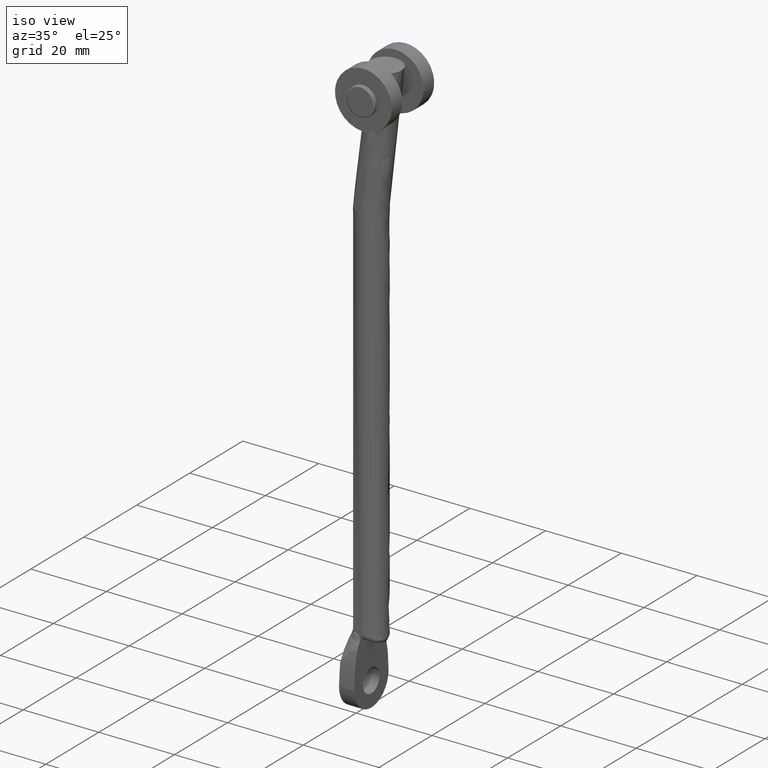
[diagram: clean part render]
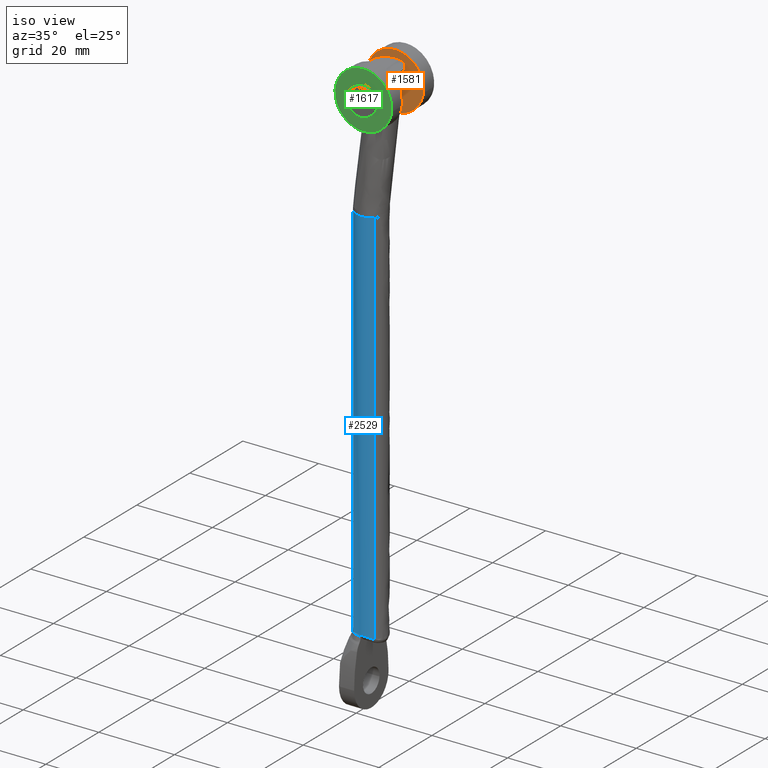
[diagram: same view with three faces highlighted in distinct colors, each labeled with its STEP entity id]
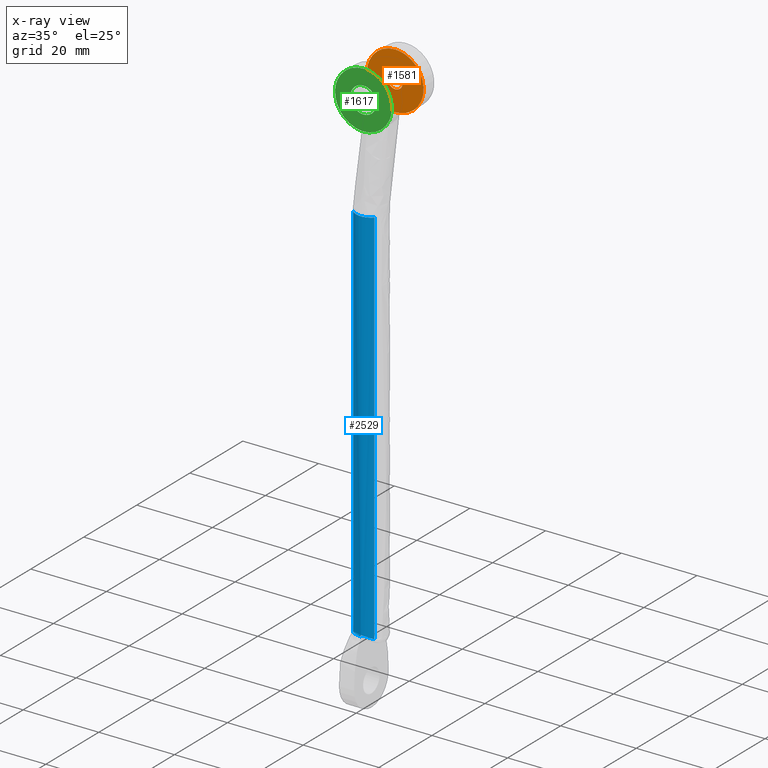
[diagram: x-ray of the same camera — body ghosted, the three highlighted faces saturated]
A machine part, iso view with three faces highlighted in distinct colors.
The next image is the same camera in x-ray (body ghosted, the three faces saturated) — at least one of them is partly hidden behind the body in this view.
Their STEP definitions:

[orange] entity #1581 — the highlighted face is a freeform B-spline surface patch.
#472=CARTESIAN_POINT('',(0.014254323228285,4.000000189989775,143.026304512900710));
#473=VERTEX_POINT('',#472);
#479=CARTESIAN_POINT('',(7.500413774066689,4.000000189989775,150.068580125921500));
#480=VERTEX_POINT('',#479);
#481=CARTESIAN_POINT('',(7.500413774066689,4.000000189989775,150.068580125921500));
#482=CARTESIAN_POINT('',(0.444978351955795,4.000000189989775,150.068580125921530));
#483=CARTESIAN_POINT('',(0.014254323228285,4.000000189989775,143.026304512900650));
#491=(BOUNDED_CURVE()B_SPLINE_CURVE(2,(#481,#482,#483),.UNSPECIFIED.,.F.,.U.)B_SPLINE_CURVE_WITH_KNOTS((3,3),(0.500000000000000,0.739332962231880),.UNSPECIFIED.)CURVE()GEOMETRIC_REPRESENTATION_ITEM()RATIONAL_B_SPLINE_CURVE((1.0,0.719603993294985,0.976072041651580))REPRESENTATION_ITEM(''));
#492=EDGE_CURVE('',#480,#473,#491,.T.);
#494=CARTESIAN_POINT('',(14.948132922138850,4.000000189989775,141.683157069371300));
#495=VERTEX_POINT('',#494);
#496=CARTESIAN_POINT('',(14.948132922138848,4.000000189989775,141.683157069371280));
#497=CARTESIAN_POINT('',(15.000562514184788,4.000000189989775,142.124241679330230));
#498=CARTESIAN_POINT('',(15.000562514184780,4.000000189989775,142.568431385803390));
#499=CARTESIAN_POINT('',(15.000562514184788,4.000000189989776,150.068580125921410));
#500=CARTESIAN_POINT('',(7.500413774066689,4.000000189989775,150.068580125921500));
#508=(BOUNDED_CURVE()B_SPLINE_CURVE(2,(#496,#497,#498,#499,#500),.UNSPECIFIED.,.F.,.U.)B_SPLINE_CURVE_WITH_KNOTS((3,2,3),(0.229562473511994,0.250000000000000,0.500000000000000),.UNSPECIFIED.)CURVE()GEOMETRIC_REPRESENTATION_ITEM()RATIONAL_B_SPLINE_CURVE((0.956026754180732,0.976055948329371,1.0,0.707106781186548,1.0))REPRESENTATION_ITEM(''));
#509=EDGE_CURVE('',#495,#480,#508,.T.);
#553=CARTESIAN_POINT('',(7.500413774066689,4.000000189989775,135.068282645685290));
#554=VERTEX_POINT('',#553);
#555=CARTESIAN_POINT('',(7.500413774066689,4.000000189989775,135.068282645685290));
#556=CARTESIAN_POINT('',(14.161854825740949,4.000000189989775,135.068282645685290));
#557=CARTESIAN_POINT('',(14.948132922138845,4.000000189989776,141.683157069371250));
#565=(BOUNDED_CURVE()B_SPLINE_CURVE(2,(#555,#556,#557),.UNSPECIFIED.,.F.,.U.)B_SPLINE_CURVE_WITH_KNOTS((3,3),(0.0,0.229562473511994),.UNSPECIFIED.)CURVE()GEOMETRIC_REPRESENTATION_ITEM()RATIONAL_B_SPLINE_CURVE((1.0,0.731050832857176,0.956026754180732))REPRESENTATION_ITEM(''));
#566=EDGE_CURVE('',#554,#495,#565,.T.);
#568=CARTESIAN_POINT('',(0.014254323228285,4.000000189989775,143.026304512900680));
#569=CARTESIAN_POINT('',(0.000265033948598,4.000000189989776,142.797581655183850));
#570=CARTESIAN_POINT('',(0.000265033948598,4.000000189989775,142.568431385803390));
#571=CARTESIAN_POINT('',(0.000265033948598,4.000000189989776,135.068282645685290));
#572=CARTESIAN_POINT('',(7.500413774066689,4.000000189989775,135.068282645685290));
#580=(BOUNDED_CURVE()B_SPLINE_CURVE(2,(#568,#569,#570,#571,#572),.UNSPECIFIED.,.F.,.U.)B_SPLINE_CURVE_WITH_KNOTS((3,2,3),(0.739332962231881,0.750000000000000,1.0),.UNSPECIFIED.)CURVE()GEOMETRIC_REPRESENTATION_ITEM()RATIONAL_B_SPLINE_CURVE((0.976072041651582,0.987502787891563,1.0,0.707106781186548,1.0))REPRESENTATION_ITEM(''));
#581=EDGE_CURVE('',#473,#554,#580,.T.);
#624=CARTESIAN_POINT('',(9.486580267670908,4.000000189989775,142.332345390330690));
#625=VERTEX_POINT('',#624);
#626=CARTESIAN_POINT('',(7.500413774066689,4.000000189989775,144.568579864685490));
#627=VERTEX_POINT('',#626);
#628=CARTESIAN_POINT('',(9.486580267670908,4.000000189989776,142.332345390330630));
#629=CARTESIAN_POINT('',(9.500562252948800,4.000000189989775,142.449974352394460));
#630=CARTESIAN_POINT('',(9.500562252948800,4.000000189989775,142.568431385803390));
#631=CARTESIAN_POINT('',(9.500562252948800,4.000000189989775,144.568579864685520));
#632=CARTESIAN_POINT('',(7.500413774066689,4.000000189989775,144.568579864685490));
#640=(BOUNDED_CURVE()B_SPLINE_CURVE(2,(#628,#629,#630,#631,#632),.UNSPECIFIED.,.F.,.U.)B_SPLINE_CURVE_WITH_KNOTS((3,2,3),(0.229562473418986,0.250000000000000,0.500000000000000),.UNSPECIFIED.)CURVE()GEOMETRIC_REPRESENTATION_ITEM()RATIONAL_B_SPLINE_CURVE((0.956026753998431,0.976055948220405,1.0,0.707106781186547,1.0))REPRESENTATION_ITEM(''));
#641=EDGE_CURVE('',#625,#627,#640,.T.);
#643=CARTESIAN_POINT('',(5.503996029878602,4.000000189989775,142.690538421901100));
#644=VERTEX_POINT('',#643);
#645=CARTESIAN_POINT('',(7.500413774066689,4.000000189989775,144.568579864685490));
#646=CARTESIAN_POINT('',(5.618863650917310,4.000000189989775,144.568579864685570));
#647=CARTESIAN_POINT('',(5.503996029878602,4.000000189989776,142.690538421901150));
#655=(BOUNDED_CURVE()B_SPLINE_CURVE(2,(#645,#646,#647),.UNSPECIFIED.,.F.,.U.)B_SPLINE_CURVE_WITH_KNOTS((3,3),(0.500000000000000,0.739332807948800),.UNSPECIFIED.)CURVE()GEOMETRIC_REPRESENTATION_ITEM()RATIONAL_B_SPLINE_CURVE((1.0,0.719604174048856,0.976071710993794))REPRESENTATION_ITEM(''));
#656=EDGE_CURVE('',#627,#644,#655,.T.);
#723=CARTESIAN_POINT('',(7.500413774066689,4.000000189989775,140.568282906921300));
#724=VERTEX_POINT('',#723);
#725=CARTESIAN_POINT('',(7.500413774066689,4.000000189989775,140.568282906921300));
#726=CARTESIAN_POINT('',(9.276894700106974,4.000000189989774,140.568282906921240));
#727=CARTESIAN_POINT('',(9.486580267670908,4.000000189989776,142.332345390330630));
#735=(BOUNDED_CURVE()B_SPLINE_CURVE(2,(#725,#726,#727),.UNSPECIFIED.,.F.,.U.)B_SPLINE_CURVE_WITH_KNOTS((3,3),(0.0,0.229562473418986),.UNSPECIFIED.)CURVE()GEOMETRIC_REPRESENTATION_ITEM()RATIONAL_B_SPLINE_CURVE((1.0,0.731050832966143,0.956026753998431))REPRESENTATION_ITEM(''));
#736=EDGE_CURVE('',#724,#625,#735,.T.);
#770=CARTESIAN_POINT('',(5.503996029878602,4.000000189989776,142.690538421901150));
#771=CARTESIAN_POINT('',(5.500265295184580,4.000000189989775,142.629542343952610));
#772=CARTESIAN_POINT('',(5.500265295184579,4.000000189989775,142.568431385803390));
#773=CARTESIAN_POINT('',(5.500265295184580,4.000000189989775,140.568282906921270));
#774=CARTESIAN_POINT('',(7.500413774066689,4.000000189989775,140.568282906921300));
#782=(BOUNDED_CURVE()B_SPLINE_CURVE(2,(#770,#771,#772,#773,#774),.UNSPECIFIED.,.F.,.U.)B_SPLINE_CURVE_WITH_KNOTS((3,2,3),(0.739332807948800,0.750000000000000,1.0),.UNSPECIFIED.)CURVE()GEOMETRIC_REPRESENTATION_ITEM()RATIONAL_B_SPLINE_CURVE((0.976071710993794,0.987502607137691,1.0,0.707106781186547,1.0))REPRESENTATION_ITEM(''));
#783=EDGE_CURVE('',#644,#724,#782,.T.);
#1564=CARTESIAN_POINT('',(-0.748817389973738,4.000000189989775,150.817837439355000));
#1565=CARTESIAN_POINT('',(-0.748817389973738,4.000000189989775,134.319018894822510));
#1566=CARTESIAN_POINT('',(15.749690938903990,4.000000189989775,150.817837439355000));
#1567=CARTESIAN_POINT('',(15.749690938903990,4.000000189989775,134.319018894822510));
#1568=B_SPLINE_SURFACE_WITH_KNOTS('',1,1,((#1564,#1566),(#1565,#1567)),.UNSPECIFIED.,.F.,.F.,.U.,(2,2),(2,2),(0.0,16.498818544532501),(0.0,16.498508328877730),.UNSPECIFIED.);
#1569=ORIENTED_EDGE('',*,*,#566,.T.);
#1570=ORIENTED_EDGE('',*,*,#509,.T.);
#1571=ORIENTED_EDGE('',*,*,#492,.T.);
#1572=ORIENTED_EDGE('',*,*,#581,.T.);
#1573=EDGE_LOOP('',(#1569,#1570,#1571,#1572));
#1574=FACE_OUTER_BOUND('',#1573,.T.);
#1575=ORIENTED_EDGE('',*,*,#656,.F.);
#1576=ORIENTED_EDGE('',*,*,#641,.F.);
#1577=ORIENTED_EDGE('',*,*,#736,.F.);
#1578=ORIENTED_EDGE('',*,*,#783,.F.);
#1579=EDGE_LOOP('',(#1575,#1576,#1577,#1578));
#1580=FACE_BOUND('',#1579,.T.);
#1581=ADVANCED_FACE('',(#1574,#1580),#1568,.T.);

[blue] entity #2529 — the highlighted face is a freeform B-spline surface patch.
#2236=CARTESIAN_POINT('',(1.146998252171889,-2.803636855707792,112.342583244945200));
#2237=VERTEX_POINT('',#2236);
#2300=CARTESIAN_POINT('',(6.803637241012471,-2.853002122574933,112.342583244947800));
#2301=VERTEX_POINT('',#2300);
#2315=CARTESIAN_POINT('',(6.803639079812296,-2.853003144721060,11.626072792382599));
#2316=VERTEX_POINT('',#2315);
#2317=CARTESIAN_POINT('',(6.803637241012471,-2.853002122574933,112.342583244947800));
#2318=CARTESIAN_POINT('',(6.803639079812296,-2.853003144721060,11.626072792382599));
#2319=QUASI_UNIFORM_CURVE('',1,(#2317,#2318),.UNSPECIFIED.,.F.,.U.);
#2320=EDGE_CURVE('',#2301,#2316,#2319,.T.);
#2417=CARTESIAN_POINT('',(1.146998189190115,-2.803636927148087,11.998061863390300));
#2418=VERTEX_POINT('',#2417);
#2432=CARTESIAN_POINT('',(1.146998252171889,-2.803636855707792,112.342583244945200));
#2433=CARTESIAN_POINT('',(1.146998189190115,-2.803636927148087,11.998061863390300));
#2434=QUASI_UNIFORM_CURVE('',1,(#2432,#2433),.UNSPECIFIED.,.F.,.U.);
#2435=EDGE_CURVE('',#2237,#2418,#2434,.T.);
#2440=CARTESIAN_POINT('',(6.803637731862991,-2.853001773403391,114.875919255342790));
#2441=CARTESIAN_POINT('',(3.950635958459600,-5.656639125286756,114.875919255342820));
#2442=CARTESIAN_POINT('',(1.146998606576235,-2.803637351883365,114.875919255342790));
#2443=CARTESIAN_POINT('',(6.803637731862991,-2.853001773403391,8.412473421635783));
#2444=CARTESIAN_POINT('',(3.950635958459600,-5.656639125286756,8.412473421635783));
#2445=CARTESIAN_POINT('',(1.146998606576235,-2.803637351883365,8.412473421635781));
#2453=(BOUNDED_SURFACE()B_SPLINE_SURFACE(2,1,((#2440,#2443),(#2441,#2444),(#2442,#2445)),.UNSPECIFIED.,.F.,.F.,.U.)B_SPLINE_SURFACE_WITH_KNOTS((3,3),(2,2),(0.0,6.627417312754933),(0.0,106.463445833707100),.UNSPECIFIED.)GEOMETRIC_REPRESENTATION_ITEM()RATIONAL_B_SPLINE_SURFACE(((1.0,1.0),(0.707106781186548,0.707106781186548),(1.0,1.0)))REPRESENTATION_ITEM('')SURFACE());
#2454=CARTESIAN_POINT('',(6.803637241012471,-2.853002122574933,112.342583244947750));
#2455=CARTESIAN_POINT('',(5.636443023472735,-4.0,112.342583244945190));
#2456=CARTESIAN_POINT('',(4.000000379979736,-4.0,112.342583244945200));
#2457=CARTESIAN_POINT('',(2.322660597870424,-4.000000000000001,112.342583244945190));
#2458=CARTESIAN_POINT('',(1.146998252171889,-2.803636855707792,112.342583244945190));
#2466=(BOUNDED_CURVE()B_SPLINE_CURVE(2,(#2454,#2455,#2456,#2457,#2458),.UNSPECIFIED.,.F.,.U.)B_SPLINE_CURVE_WITH_KNOTS((3,2,3),(0.126316793926452,0.250000000000000,0.376316794489715),.UNSPECIFIED.)CURVE()GEOMETRIC_REPRESENTATION_ITEM()RATIONAL_B_SPLINE_CURVE((0.853569642148374,0.855096110639804,1.0,0.852010669886840,0.853569642162277))REPRESENTATION_ITEM(''));
#2467=EDGE_CURVE('',#2301,#2237,#2466,.T.);
#2468=ORIENTED_EDGE('',*,*,#2467,.T.);
#2469=ORIENTED_EDGE('',*,*,#2435,.T.);
#2470=CARTESIAN_POINT('',(4.000000185240075,-4.000000189989800,11.998061863390300));
#2471=VERTEX_POINT('',#2470);
#2472=CARTESIAN_POINT('',(4.000000185240075,-4.000000189989800,11.998061863390300));
#2473=CARTESIAN_POINT('',(2.322660445960773,-4.000000108328706,11.998061863390303));
#2474=CARTESIAN_POINT('',(1.146998189190115,-2.803636927148088,11.998061863390307));
#2482=(BOUNDED_CURVE()B_SPLINE_CURVE(2,(#2472,#2473,#2474),.UNSPECIFIED.,.F.,.U.)B_SPLINE_CURVE_WITH_KNOTS((3,3),(0.0,0.505267161392690),.UNSPECIFIED.)CURVE()GEOMETRIC_REPRESENTATION_ITEM()RATIONAL_B_SPLINE_CURVE((1.0,0.852010683435974,0.853569650665447))REPRESENTATION_ITEM(''));
#2483=EDGE_CURVE('',#2471,#2418,#2482,.T.);
#2484=ORIENTED_EDGE('',*,*,#2483,.F.);
#2485=CARTESIAN_POINT('',(4.000000185239431,-4.000000189989800,12.355542049971380));
#2486=VERTEX_POINT('',#2485);
#2487=CARTESIAN_POINT('',(4.000000185240075,-4.000000189989800,11.998061863390300));
#2488=CARTESIAN_POINT('',(4.000000185239431,-4.000000189989800,12.355542049971380));
#2489=QUASI_UNIFORM_CURVE('',1,(#2487,#2488),.UNSPECIFIED.,.F.,.U.);
#2490=EDGE_CURVE('',#2471,#2486,#2489,.T.);
#2491=ORIENTED_EDGE('',*,*,#2490,.T.);
#2492=CARTESIAN_POINT('',(4.193434963033995,-3.995320145129626,12.355542049959920));
#2493=VERTEX_POINT('',#2492);
#2494=CARTESIAN_POINT('',(4.193434963033995,-3.995320145129626,12.355542049959920));
#2495=CARTESIAN_POINT('',(4.096774189767601,-4.000000194701247,12.355542049971380));
#2496=CARTESIAN_POINT('',(4.000000185239432,-4.000000189989800,12.355542049971380));
#2504=(BOUNDED_CURVE()B_SPLINE_CURVE(2,(#2494,#2495,#2496),.UNSPECIFIED.,.F.,.U.)CURVE()GEOMETRIC_REPRESENTATION_ITEM()QUASI_UNIFORM_CURVE()RATIONAL_B_SPLINE_CURVE((1.0,0.999707465693855,1.0))REPRESENTATION_ITEM(''));
#2505=EDGE_CURVE('',#2493,#2486,#2504,.T.);
#2506=ORIENTED_EDGE('',*,*,#2505,.F.);
#2507=CARTESIAN_POINT('',(4.193434963033995,-3.995320145129626,12.355542049959920));
#2508=CARTESIAN_POINT('',(4.450887203872617,-3.982855595236658,12.344968886485519));
#2509=CARTESIAN_POINT('',(4.702148870083605,-3.946011476024613,12.313493426363150));
#2510=CARTESIAN_POINT('',(5.009414905156747,-3.871056889996604,12.253689887618499));
#2511=CARTESIAN_POINT('',(5.070634440043969,-3.854566949431638,12.240681926934601));
#2512=CARTESIAN_POINT('',(5.191144351981987,-3.819046875314438,12.213092998436190));
#2513=CARTESIAN_POINT('',(5.250580203217972,-3.799987031197496,12.198487829870690));
#2514=CARTESIAN_POINT('',(5.426580155643830,-3.739021890648906,12.152566384784580));
#2515=CARTESIAN_POINT('',(5.540844499205776,-3.693342884045618,12.119152721354800));
#2516=CARTESIAN_POINT('',(5.763824017945201,-3.592200859746106,12.048240066273181));
#2517=CARTESIAN_POINT('',(5.872537881211558,-3.536736361974336,12.010738910716061));
#2518=CARTESIAN_POINT('',(6.084765806676878,-3.415940933665004,11.932912945761091));
#2519=CARTESIAN_POINT('',(6.188629662273308,-3.350326889843005,11.892432239168979));
#2520=CARTESIAN_POINT('',(6.472578624668962,-3.152264356639628,11.776618841426830));
#2521=CARTESIAN_POINT('',(6.644061382170796,-3.009859421983214,11.700464854572081));
#2522=CARTESIAN_POINT('',(6.803639079812296,-2.853003144721060,11.626072792382599));
#2523=B_SPLINE_CURVE_WITH_KNOTS('',3,(#2507,#2508,#2509,#2510,#2511,#2512,#2513,#2514,#2515,#2516,#2517,#2518,#2519,#2520,#2521,#2522),.UNSPECIFIED.,.F.,.U.,(4,2,2,2,2,2,2,4),(0.0,0.062500000000000,0.078125000000000,0.093750000000000,0.125000000000000,0.156250000000000,0.187500000000000,0.245186565253012),.UNSPECIFIED.);
#2524=EDGE_CURVE('',#2493,#2316,#2523,.T.);
#2525=ORIENTED_EDGE('',*,*,#2524,.T.);
#2526=ORIENTED_EDGE('',*,*,#2320,.F.);
#2527=EDGE_LOOP('',(#2468,#2469,#2484,#2491,#2506,#2525,#2526));
#2528=FACE_OUTER_BOUND('',#2527,.T.);
#2529=ADVANCED_FACE('',(#2528),#2453,.T.);

[green] entity #1617 — the highlighted face is a freeform B-spline surface patch.
#844=CARTESIAN_POINT('',(0.014254323228285,-8.000000379979609,143.026304512900710));
#845=VERTEX_POINT('',#844);
#851=CARTESIAN_POINT('',(7.500413774066689,-8.000000379979609,150.068580125921500));
#852=VERTEX_POINT('',#851);
#853=CARTESIAN_POINT('',(7.500413774066689,-8.000000379979609,150.068580125921500));
#854=CARTESIAN_POINT('',(0.444978351955795,-8.000000379979609,150.068580125921530));
#855=CARTESIAN_POINT('',(0.014254323228285,-8.000000379979609,143.026304512900650));
#863=(BOUNDED_CURVE()B_SPLINE_CURVE(2,(#853,#854,#855),.UNSPECIFIED.,.F.,.U.)B_SPLINE_CURVE_WITH_KNOTS((3,3),(0.500000000000000,0.739332962231880),.UNSPECIFIED.)CURVE()GEOMETRIC_REPRESENTATION_ITEM()RATIONAL_B_SPLINE_CURVE((1.0,0.719603993294985,0.976072041651580))REPRESENTATION_ITEM(''));
#864=EDGE_CURVE('',#852,#845,#863,.T.);
#866=CARTESIAN_POINT('',(14.948132922138850,-8.000000379979609,141.683157069371300));
#867=VERTEX_POINT('',#866);
#868=CARTESIAN_POINT('',(14.948132922138848,-8.000000379979609,141.683157069371280));
#869=CARTESIAN_POINT('',(15.000562514184788,-8.000000379979609,142.124241679330230));
#870=CARTESIAN_POINT('',(15.000562514184780,-8.000000379979609,142.568431385803390));
#871=CARTESIAN_POINT('',(15.000562514184788,-8.000000379979609,150.068580125921410));
#872=CARTESIAN_POINT('',(7.500413774066689,-8.000000379979609,150.068580125921500));
#880=(BOUNDED_CURVE()B_SPLINE_CURVE(2,(#868,#869,#870,#871,#872),.UNSPECIFIED.,.F.,.U.)B_SPLINE_CURVE_WITH_KNOTS((3,2,3),(0.229562473511994,0.250000000000000,0.500000000000000),.UNSPECIFIED.)CURVE()GEOMETRIC_REPRESENTATION_ITEM()RATIONAL_B_SPLINE_CURVE((0.956026754180732,0.976055948329371,1.0,0.707106781186548,1.0))REPRESENTATION_ITEM(''));
#881=EDGE_CURVE('',#867,#852,#880,.T.);
#925=CARTESIAN_POINT('',(7.500413774066689,-8.000000379979609,135.068282645685290));
#926=VERTEX_POINT('',#925);
#927=CARTESIAN_POINT('',(7.500413774066689,-8.000000379979609,135.068282645685290));
#928=CARTESIAN_POINT('',(14.161854825740949,-8.000000379979609,135.068282645685290));
#929=CARTESIAN_POINT('',(14.948132922138845,-8.000000379979610,141.683157069371250));
#937=(BOUNDED_CURVE()B_SPLINE_CURVE(2,(#927,#928,#929),.UNSPECIFIED.,.F.,.U.)B_SPLINE_CURVE_WITH_KNOTS((3,3),(0.0,0.229562473511994),.UNSPECIFIED.)CURVE()GEOMETRIC_REPRESENTATION_ITEM()RATIONAL_B_SPLINE_CURVE((1.0,0.731050832857176,0.956026754180732))REPRESENTATION_ITEM(''));
#938=EDGE_CURVE('',#926,#867,#937,.T.);
#940=CARTESIAN_POINT('',(0.014254323228285,-8.000000379979609,143.026304512900680));
#941=CARTESIAN_POINT('',(0.000265033948598,-8.000000379979609,142.797581655183850));
#942=CARTESIAN_POINT('',(0.000265033948598,-8.000000379979609,142.568431385803390));
#943=CARTESIAN_POINT('',(0.000265033948598,-8.000000379979609,135.068282645685290));
#944=CARTESIAN_POINT('',(7.500413774066689,-8.000000379979609,135.068282645685290));
#952=(BOUNDED_CURVE()B_SPLINE_CURVE(2,(#940,#941,#942,#943,#944),.UNSPECIFIED.,.F.,.U.)B_SPLINE_CURVE_WITH_KNOTS((3,2,3),(0.739332962231881,0.750000000000000,1.0),.UNSPECIFIED.)CURVE()GEOMETRIC_REPRESENTATION_ITEM()RATIONAL_B_SPLINE_CURVE((0.976072041651582,0.987502787891563,1.0,0.707106781186548,1.0))REPRESENTATION_ITEM(''));
#953=EDGE_CURVE('',#845,#926,#952,.T.);
#1247=CARTESIAN_POINT('',(10.942163549570630,-8.000000189244787,142.327841307571900));
#1248=VERTEX_POINT('',#1247);
#1249=CARTESIAN_POINT('',(7.500413774066689,-8.000000189244791,146.018579933556790));
#1250=VERTEX_POINT('',#1249);
#1251=CARTESIAN_POINT('',(10.942163549570632,-8.000000189244787,142.327841307571840));
#1252=CARTESIAN_POINT('',(10.950562321820101,-8.000000189244791,142.447989749808870));
#1253=CARTESIAN_POINT('',(10.950562321820099,-8.000000189244791,142.568431385803390));
#1254=CARTESIAN_POINT('',(10.950562321820099,-8.000000189244791,146.018579933556740));
#1255=CARTESIAN_POINT('',(7.500413774066689,-8.000000189244791,146.018579933556790));
#1263=(BOUNDED_CURVE()B_SPLINE_CURVE(2,(#1251,#1252,#1253,#1254,#1255),.UNSPECIFIED.,.F.,.U.)B_SPLINE_CURVE_WITH_KNOTS((3,2,3),(0.237833686479764,0.250000000000000,0.500000000000000),.UNSPECIFIED.)CURVE()GEOMETRIC_REPRESENTATION_ITEM()RATIONAL_B_SPLINE_CURVE((0.972879876269954,0.985746277087858,1.0,0.707106781186548,1.0))REPRESENTATION_ITEM(''));
#1264=EDGE_CURVE('',#1248,#1250,#1263,.T.);
#1266=CARTESIAN_POINT('',(4.050537549141149,-8.000000189244812,142.611786096091890));
#1267=VERTEX_POINT('',#1266);
#1268=CARTESIAN_POINT('',(7.500413774066689,-8.000000189244791,146.018579933556790));
#1269=CARTESIAN_POINT('',(4.093350932980459,-8.000000189244791,146.018579933556820));
#1270=CARTESIAN_POINT('',(4.050537549141150,-8.000000189244812,142.611786096091920));
#1278=(BOUNDED_CURVE()B_SPLINE_CURVE(2,(#1268,#1269,#1270),.UNSPECIFIED.,.F.,.U.)B_SPLINE_CURVE_WITH_KNOTS((3,3),(0.500000000000000,0.747784295417319),.UNSPECIFIED.)CURVE()GEOMETRIC_REPRESENTATION_ITEM()RATIONAL_B_SPLINE_CURVE((1.0,0.709702640575192,0.994854294483059))REPRESENTATION_ITEM(''));
#1279=EDGE_CURVE('',#1250,#1267,#1278,.T.);
#1335=CARTESIAN_POINT('',(7.500413774066689,-8.000000189244791,139.118282838049990));
#1336=VERTEX_POINT('',#1335);
#1337=CARTESIAN_POINT('',(7.500413774066689,-8.000000189244791,139.118282838049990));
#1338=CARTESIAN_POINT('',(10.717804422351790,-8.000000189244789,139.118282838049940));
#1339=CARTESIAN_POINT('',(10.942163549570630,-8.000000189244787,142.327841307571840));
#1347=(BOUNDED_CURVE()B_SPLINE_CURVE(2,(#1337,#1338,#1339),.UNSPECIFIED.,.F.,.U.)B_SPLINE_CURVE_WITH_KNOTS((3,3),(0.0,0.237833686479765),.UNSPECIFIED.)CURVE()GEOMETRIC_REPRESENTATION_ITEM()RATIONAL_B_SPLINE_CURVE((1.0,0.721360504098689,0.972879876269954))REPRESENTATION_ITEM(''));
#1348=EDGE_CURVE('',#1336,#1248,#1347,.T.);
#1356=CARTESIAN_POINT('',(4.050537549141149,-8.000000189244812,142.611786096091830));
#1357=CARTESIAN_POINT('',(4.050265226313280,-8.000000189244791,142.590109598688740));
#1358=CARTESIAN_POINT('',(4.050265226313280,-8.000000189244791,142.568431385803390));
#1359=CARTESIAN_POINT('',(4.050265226313280,-8.000000189244791,139.118282838049960));
#1360=CARTESIAN_POINT('',(7.500413774066689,-8.000000189244791,139.118282838049990));
#1368=(BOUNDED_CURVE()B_SPLINE_CURVE(2,(#1356,#1357,#1358,#1359,#1360),.UNSPECIFIED.,.F.,.U.)B_SPLINE_CURVE_WITH_KNOTS((3,2,3),(0.747784295417320,0.750000000000000,1.0),.UNSPECIFIED.)CURVE()GEOMETRIC_REPRESENTATION_ITEM()RATIONAL_B_SPLINE_CURVE((0.994854294483059,0.997404140611356,1.0,0.707106781186548,1.0))REPRESENTATION_ITEM(''));
#1369=EDGE_CURVE('',#1267,#1336,#1368,.T.);
#1600=CARTESIAN_POINT('',(-0.748817389973738,-8.000000284612201,150.817837439355000));
#1601=CARTESIAN_POINT('',(-0.748817389973738,-8.000000284612201,134.319018894822510));
#1602=CARTESIAN_POINT('',(15.749690938903990,-8.000000284612201,150.817837439355000));
#1603=CARTESIAN_POINT('',(15.749690938903990,-8.000000284612201,134.319018894822510));
#1604=B_SPLINE_SURFACE_WITH_KNOTS('',1,1,((#1600,#1602),(#1601,#1603)),.UNSPECIFIED.,.F.,.F.,.U.,(2,2),(2,2),(0.0,16.498818544532501),(0.0,16.498508328877730),.UNSPECIFIED.);
#1605=ORIENTED_EDGE('',*,*,#938,.T.);
#1606=ORIENTED_EDGE('',*,*,#881,.T.);
#1607=ORIENTED_EDGE('',*,*,#864,.T.);
#1608=ORIENTED_EDGE('',*,*,#953,.T.);
#1609=EDGE_LOOP('',(#1605,#1606,#1607,#1608));
#1610=FACE_OUTER_BOUND('',#1609,.T.);
#1611=ORIENTED_EDGE('',*,*,#1279,.F.);
#1612=ORIENTED_EDGE('',*,*,#1264,.F.);
#1613=ORIENTED_EDGE('',*,*,#1348,.F.);
#1614=ORIENTED_EDGE('',*,*,#1369,.F.);
#1615=EDGE_LOOP('',(#1611,#1612,#1613,#1614));
#1616=FACE_BOUND('',#1615,.T.);
#1617=ADVANCED_FACE('',(#1610,#1616),#1604,.T.);